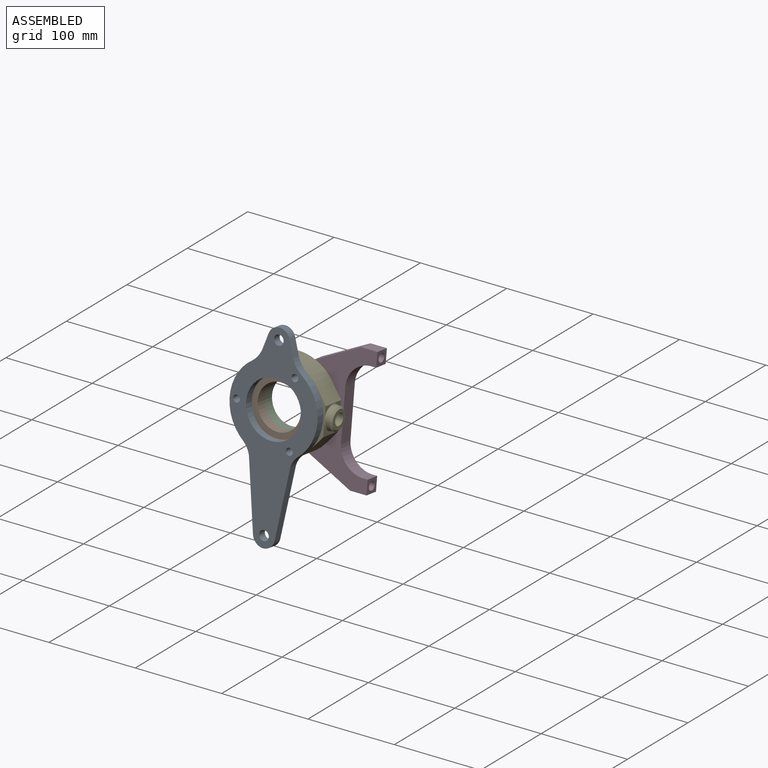
[diagram: assembled view]
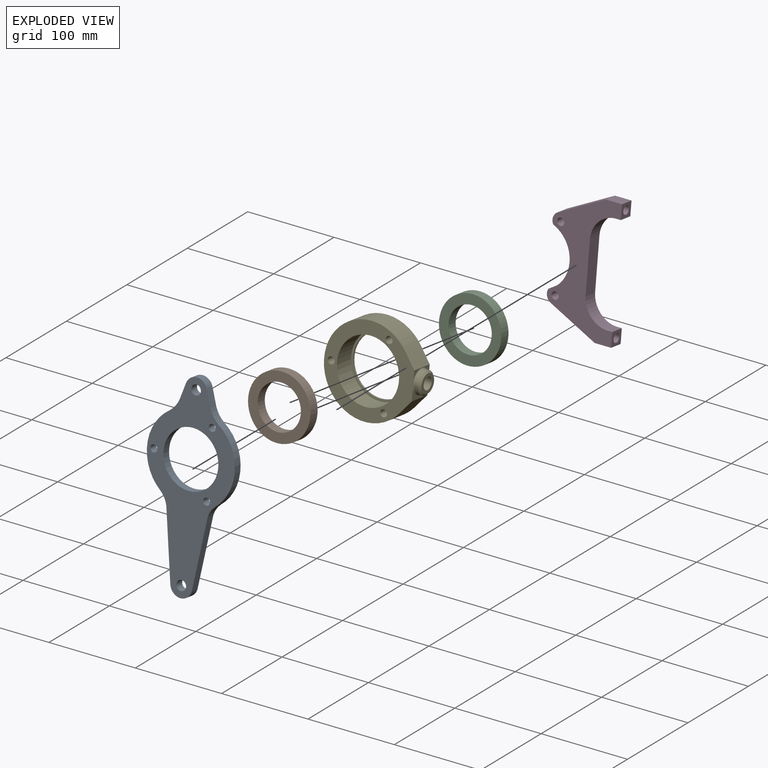
[diagram: exploded view]
GUIDED TOUR — MATED ASSEMBLY (Onshape document af3f4730a27134600b8b0b92, AutoMate assembly af3f4730a27134600b8b0b92_98c0748dc677245c911822a7_2b4eb2aca6c4c2a07d56eafd_default)

This assembly has 5 components, labeled P0..P4 below (a component is one placed occurrence of a part; the same part can appear more than once), held together by 4 mates. A mate is a constraint between two components; its type names the relative motion it leaves free:
  FASTENED — locks the two components together rigidly (no relative motion).
Axis/direction vectors are unit vectors and 'through' points are millimeter coordinates, both in the assembly's world frame.

MATES
  1. FASTENED "Fastened 1": P0 <-> P1, direction (0.000, 0.992, -0.125) through (-48.31, -92.90, -83.52) mm
  2. FASTENED "Fastened 4": P1 <-> P2, direction (0.000, 0.992, -0.125) through (-48.31, -80.99, -85.01) mm
  3. FASTENED "Fastened 3": P2 <-> P4, direction (0.000, 0.992, -0.125) through (-48.31, -69.08, -86.51) mm
  4. FASTENED "Fastened 2": P3 <-> P4, direction (0.000, -0.992, 0.125) through (-48.31, -67.19, -86.75) mm

ASSEMBLY ORDER
  1. P1 — the base component [order heuristic]
  2. P4 — core [order heuristic]
  3. P0 [order verified]
  4. P2 — core [order heuristic]
  5. P3 [order verified]
Order-tag legend:
  [order verified] — this step's position reverses a verified removal order: the component was checked to insert without passing through the ones already placed.
  [order heuristic] — the first 3 components form the assembly's core: parts whose collision-free extraction could not be verified, listed in mate-graph order.

Of the 5 components, 4 carry the full construction recipe — the FeatureScript program that regenerates the part's solid from scratch; the rest are supplied as boundary geometry only.
Each toured component is shown spotlighted twice — in the assembled view, then in the exploded view, where a leader line traces a displaced component back to its assembled socket (saturated green if recipe-attached, orange if geometry-only; every other component desaturated gray) — followed by its recipe or geometry summary and the mates that hold it.
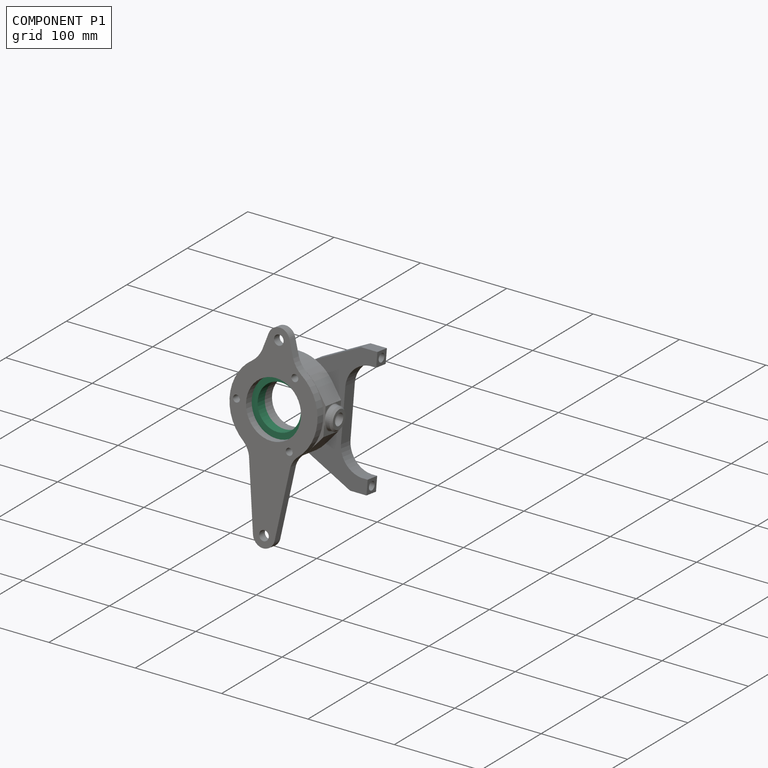
[diagram: component P1 — assembled]
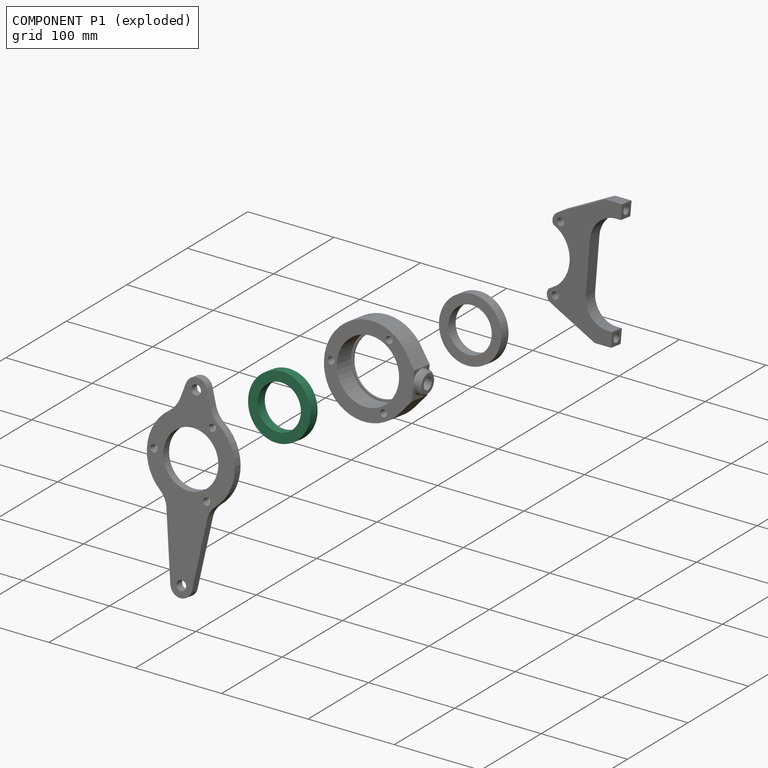
[diagram: component P1 — exploded]
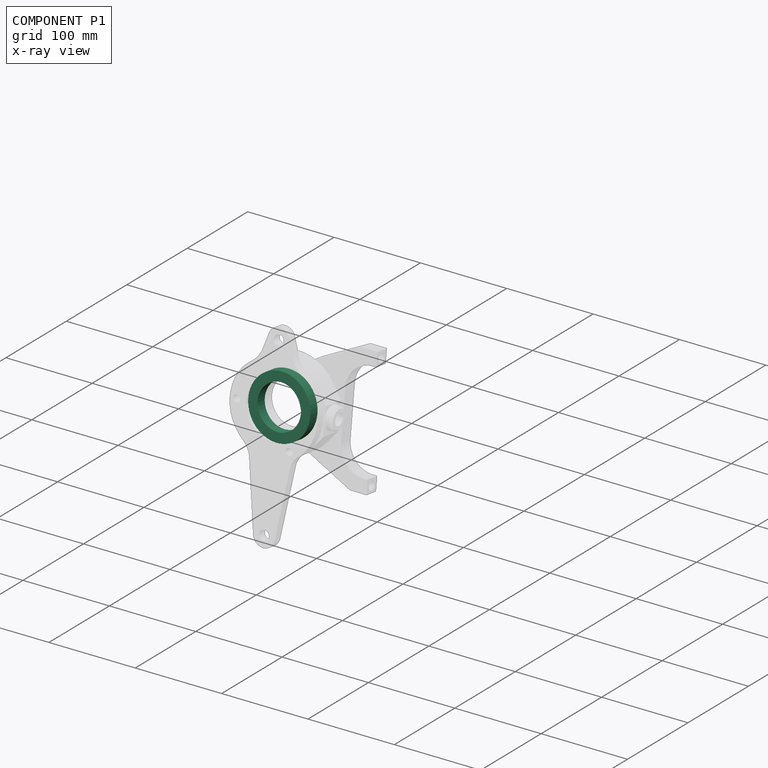
[diagram: component P1 — x-ray view]
COMPONENT P1 — recipe-attached (CADFS 00308085, mesh-verified: the recipe's output STEP matches this component's geometry to below the mesh-comparison resolution (tessellation chordal tolerance ~0.154 mm)).
Held by: FASTENED mate "Fastened 1" to P0; FASTENED mate "Fastened 4" to P2.
Construction recipe (FeatureScript — the CAD program that rebuilds this solid; sketch coordinates are in the units given by the * unit suffixes, e.g. mm):

FeatureScript 1511;
import(path : "onshape/std/geometry.fs", version : "1511.0");
import(path : "onshape/std/common.fs", version : "1511.0");
const mm = millimeter;
const VERTEX = EntityType.VERTEX;
const EDGE = EntityType.EDGE;
const FACE = EntityType.FACE;
const BODY = EntityType.BODY;
function v(x, y){return vector(x, y);}
function OD(order){return orderDisambiguation(order);}
function OSD(set){return originalSetDisambiguation(set);}
function TD(topology){return topologyDisambiguation(topology);}
function TDD(query){return trueDependencyDisambiguation(query);}
function sQuery(a, b, c) {return sketchEntityQuery(a, b, c);}

annotation { "Feature Type Name" : "Feature", "Feature Type Description" : "" }
export const myFeature = defineFeature(function(context is Context, id is Id, definition is map)
    precondition{}
    {
        {
            var Q0;
            Q0=qCreatedBy(makeId("Front.planeOp"),FACE);
            var sketch = newSketch(context, id + "F0", { "sketchPlane" : qUnion([Q0])});
            skCircle(sketch, "E0", {"center": v(0, 0) * mm, "radius": 36 * mm});
            skCircle(sketch, "E1", {"center": v(0, 0) * mm, "radius": 25 * mm});
            skSolve(sketch);
        }
        {
            var Q0;
            Q0 = qSketchRegion(id + "F0", true);
            extrude(context, id + "F1", {"entities" : qUnion([Q0]), "depth" : 12 * mm, "offsetDistance" : 25.4 * mm});
        }
    });
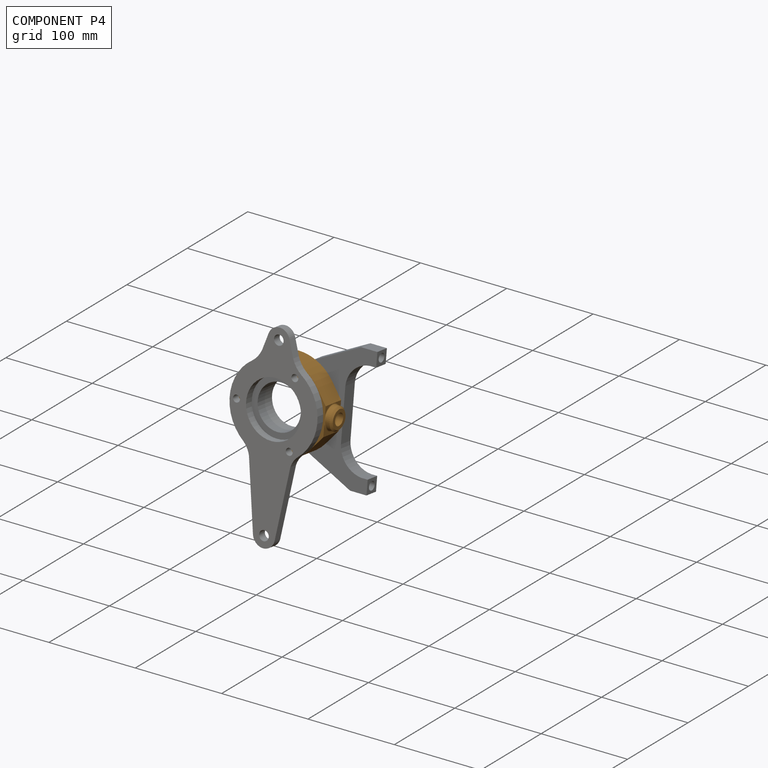
[diagram: component P4 — assembled]
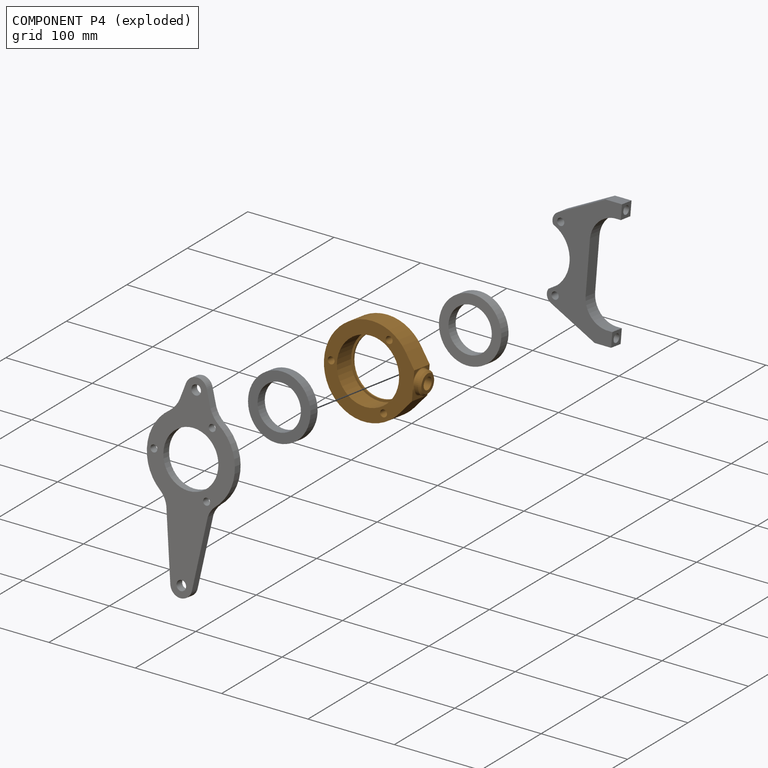
[diagram: component P4 — exploded]
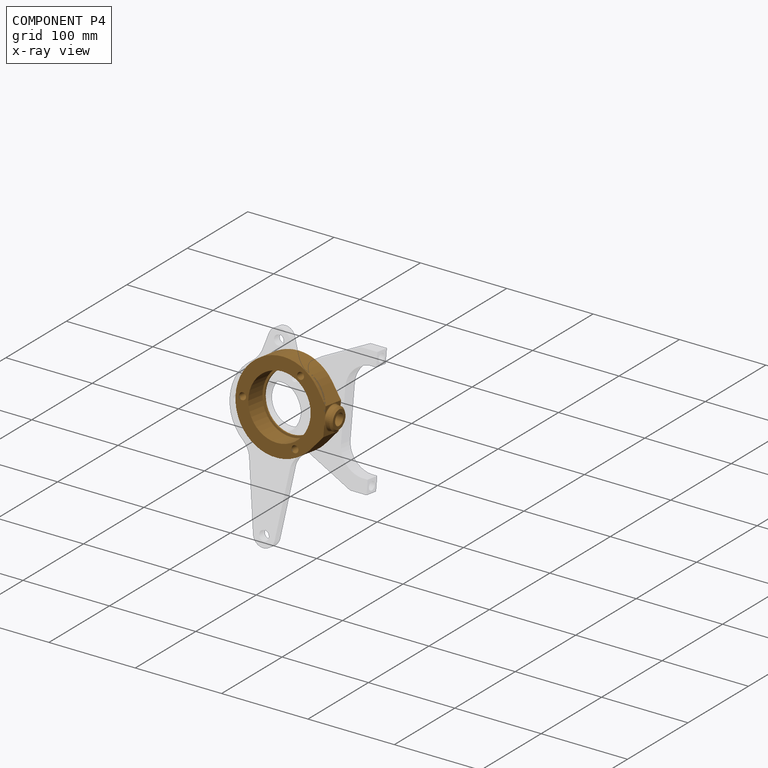
[diagram: component P4 — x-ray view]
COMPONENT P4 — geometry summary (no construction recipe available for this part):
  bounding box: 111.2 x 101.7 x 29.7 mm
  B-rep topology: 1 solid, 21 faces, 98 edges
  volume: 104532 mm^3 (31% of its bounding box)
Held by: FASTENED mate "Fastened 3" to P2; FASTENED mate "Fastened 2" to P3.
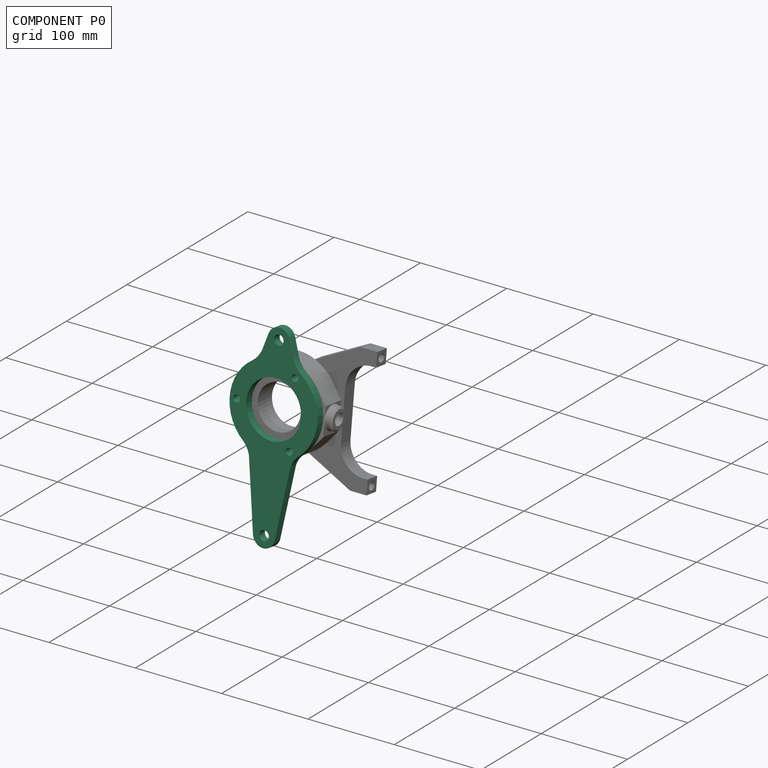
[diagram: component P0 — assembled]
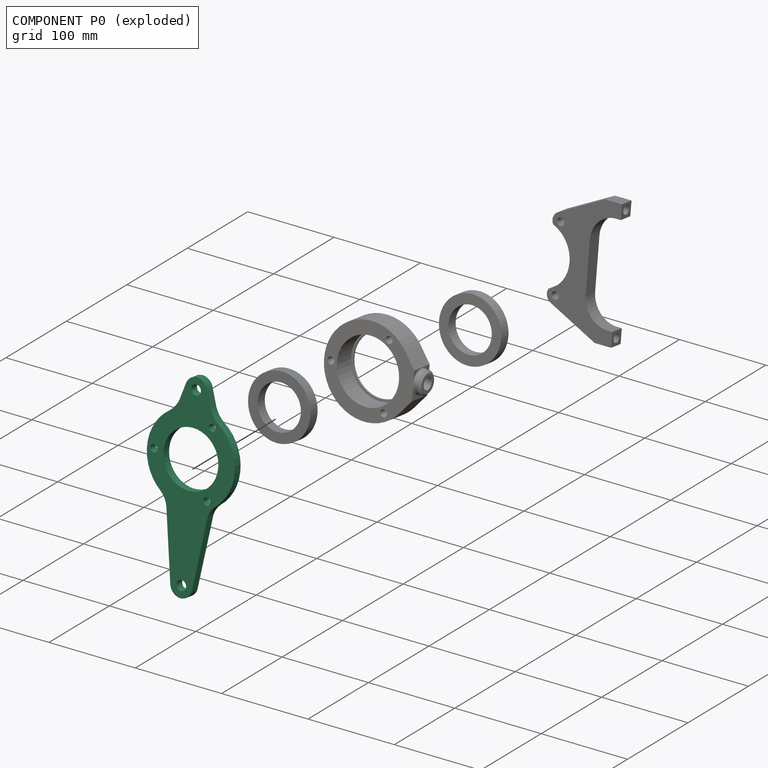
[diagram: component P0 — exploded]
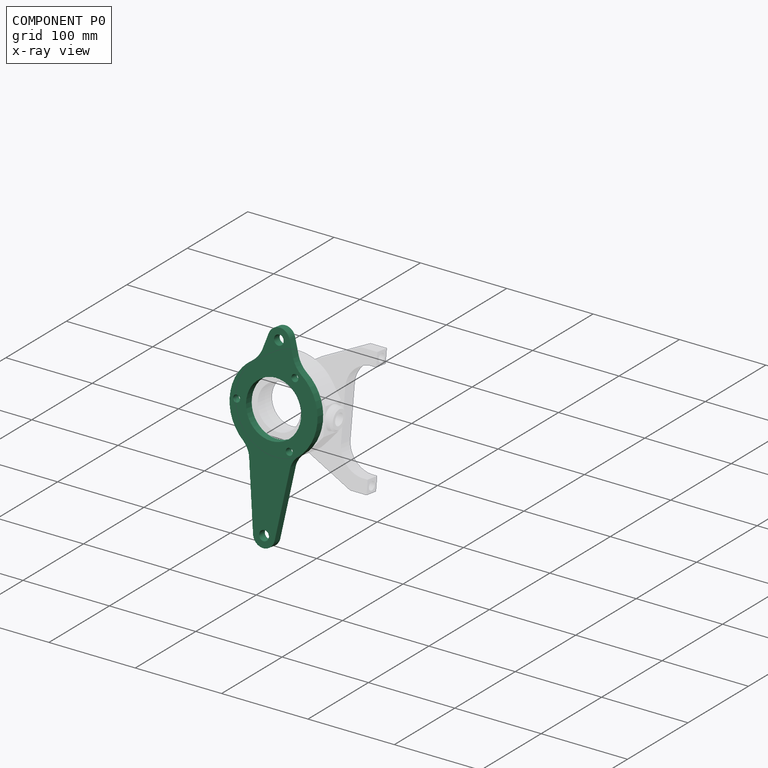
[diagram: component P0 — x-ray view]
COMPONENT P0 — recipe-attached (CADFS 00308081, mesh-verified: the recipe's output STEP matches this component's geometry to below the mesh-comparison resolution (tessellation chordal tolerance ~0.367 mm)).
Held by: FASTENED mate "Fastened 1" to P1.
Construction recipe (FeatureScript — the CAD program that rebuilds this solid; sketch coordinates are in the units given by the * unit suffixes, e.g. mm):

FeatureScript 1511;
import(path : "onshape/std/geometry.fs", version : "1511.0");
import(path : "onshape/std/common.fs", version : "1511.0");
const mm = millimeter;
const VERTEX = EntityType.VERTEX;
const EDGE = EntityType.EDGE;
const FACE = EntityType.FACE;
const BODY = EntityType.BODY;
function v(x, y){return vector(x, y);}
function OD(order){return orderDisambiguation(order);}
function OSD(set){return originalSetDisambiguation(set);}
function TD(topology){return topologyDisambiguation(topology);}
function TDD(query){return trueDependencyDisambiguation(query);}
function sQuery(a, b, c) {return sketchEntityQuery(a, b, c);}

annotation { "Feature Type Name" : "Feature", "Feature Type Description" : "" }
export const myFeature = defineFeature(function(context is Context, id is Id, definition is map)
    precondition{}
    {
        {
            var Q0;
            Q0=qCreatedBy(makeId("Front.planeOp"),FACE);
            var sketch = newSketch(context, id + "F0", { "sketchPlane" : qUnion([Q0])});
            skArc(sketch, "E0", {"start": v(31.44, -39.9) * mm, "mid": v(50.76, 2) * mm, "end": v(28.19, 42.26) * mm});
            skCircle(sketch, "E1", {"center": v(0, 0) * mm, "radius": 31.75 * mm});
            skLineSegment(sketch, "E2", {"start": v(0, 117.02) * mm, "end": v(0, -168.81) * mm, "construction": true});
            skLineSegment(sketch, "E3", {"start": v(-75.94, 0) * mm, "end": v(123.61, 0) * mm, "construction": true});
            skCircle(sketch, "E4", {"center": v(0, 69.85) * mm, "radius": 5.56 * mm});
            skCircle(sketch, "E5", {"center": v(0, -127) * mm, "radius": 5.56 * mm});
            skArc(sketch, "E6", {"start": v(12.08, 73.76) * mm, "mid": v(0, 82.55) * mm, "end": v(-12.08, 73.77) * mm});
            skArc(sketch, "E7", {"start": v(-12.56, -128.88) * mm, "mid": v(0, -139.7) * mm, "end": v(12.56, -128.86) * mm});
            skCircle(sketch, "E8", {"center": v(-21.42, 37.1) * mm, "radius": 3.97 * mm});
            skCircle(sketch, "E9", {"center": v(-21.42, -37.1) * mm, "radius": 3.97 * mm});
            skLineSegment(sketch, "E10", {"start": v(-24.08, -51.75) * mm, "end": v(-12.56, -128.88) * mm});
            skLineSegment(sketch, "E11", {"start": v(23.81, -52.8) * mm, "end": v(12.56, -128.86) * mm});
            skArc(sketch, "E12", {"start": v(33.1, -38.54) * mm, "mid": v(26.16, -46.6) * mm, "end": v(23.22, -56.83) * mm});
            skArc(sketch, "E13.MirrorCS", {"start": v(-33.1, -38.54) * mm, "mid": v(-26.16, -46.6) * mm, "end": v(-23.22, -56.83) * mm});
            skLineSegment(sketch, "E14", {"start": v(-17.88, 55.9) * mm, "end": v(-12.08, 73.77) * mm});
            skLineSegment(sketch, "E15", {"start": v(17.78, 56.17) * mm, "end": v(12.08, 73.76) * mm});
            skArc(sketch, "E16", {"start": v(16.98, 58.65) * mm, "mid": v(21.81, 48.7) * mm, "end": v(29.86, 41.1) * mm});
            skArc(sketch, "E17.MirrorCS", {"start": v(-16.98, 58.65) * mm, "mid": v(-21.81, 48.7) * mm, "end": v(-29.86, 41.1) * mm});
            skArc(sketch, "E18.trimOffspring", {"start": v(-28.19, 42.26) * mm, "mid": v(-50.76, 2) * mm, "end": v(-31.44, -39.9) * mm});
            skCircle(sketch, "E19", {"center": v(42.85, 0) * mm, "radius": 3.97 * mm});
            skSolve(sketch);
        }
        {
            var Q0;
            Q0 = qSketchRegion(id + "F0", true);
            extrude(context, id + "F1", {"entities" : qUnion([Q0]), "depth" : 9.52 * mm, "offsetDistance" : 25.4 * mm});
        }
    });
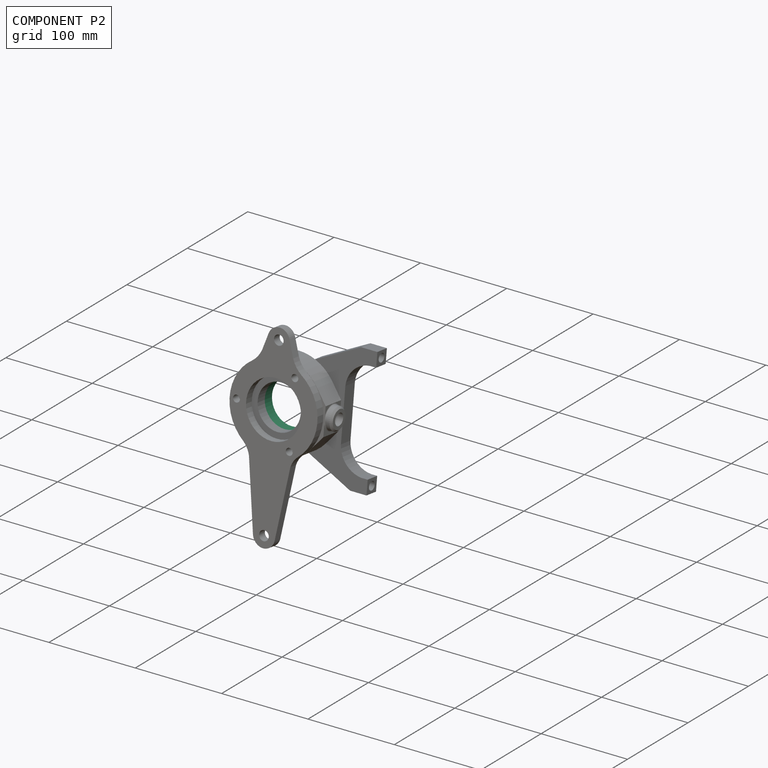
[diagram: component P2 — assembled]
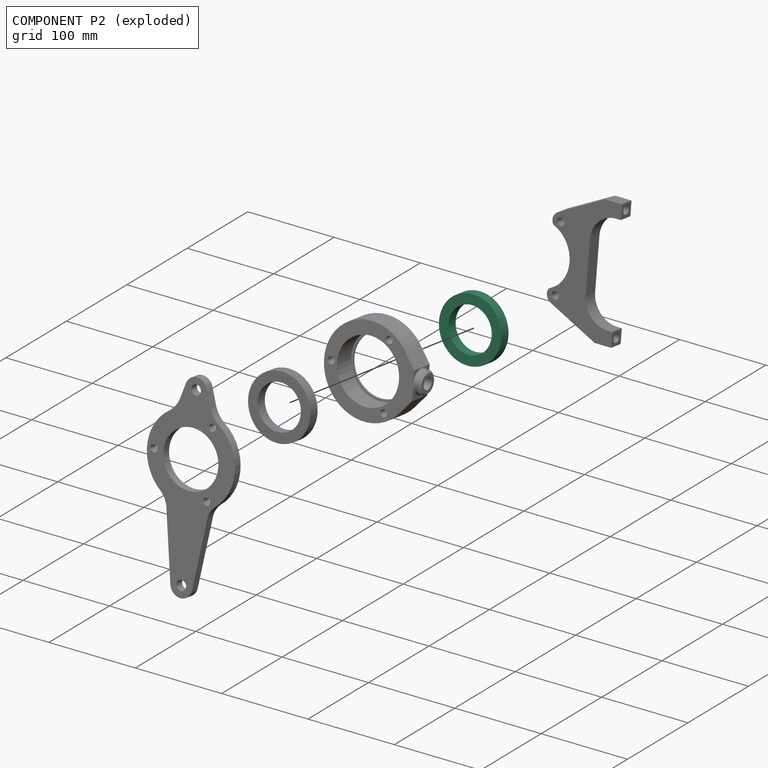
[diagram: component P2 — exploded]
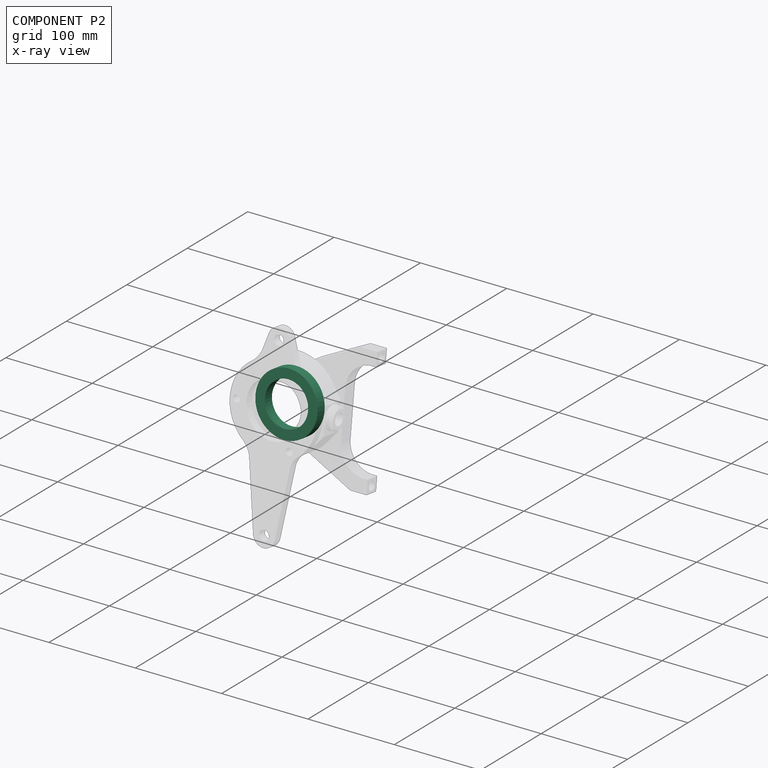
[diagram: component P2 — x-ray view]
COMPONENT P2 — same part as P1 (CADFS 00308085); its construction recipe is shown at P1.
Held by: FASTENED mate "Fastened 4" to P1; FASTENED mate "Fastened 3" to P4.
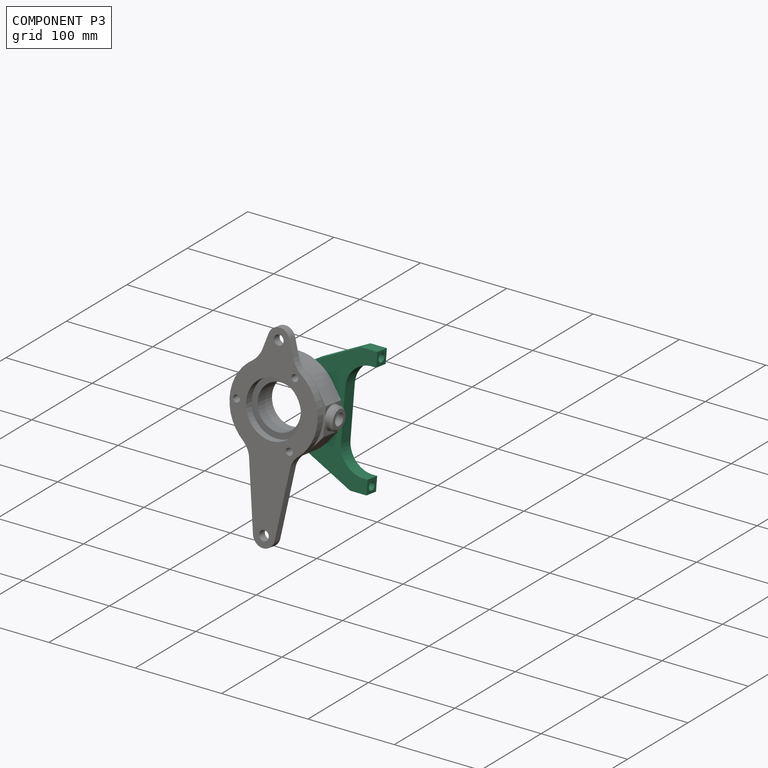
[diagram: component P3 — assembled]
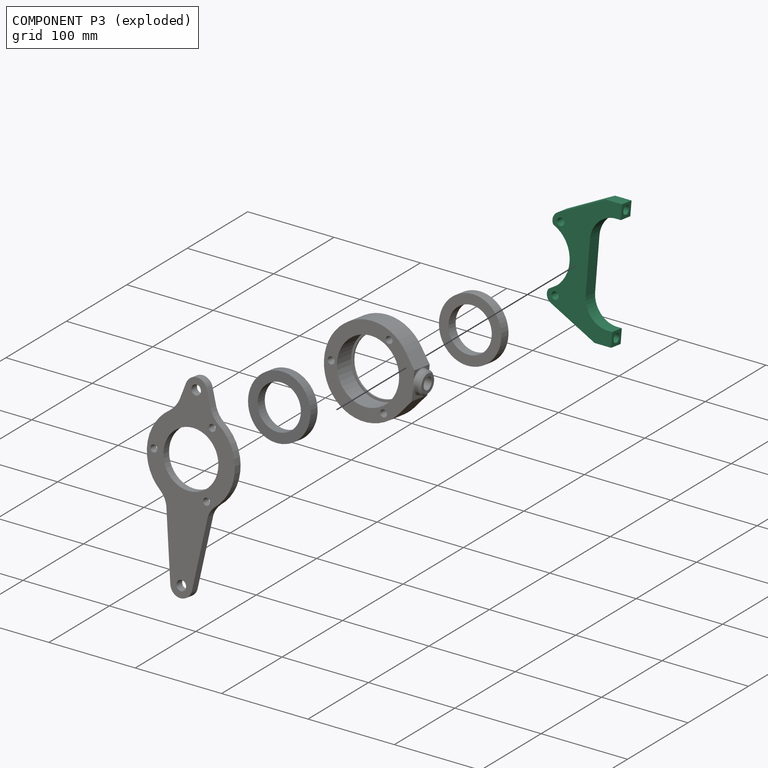
[diagram: component P3 — exploded]
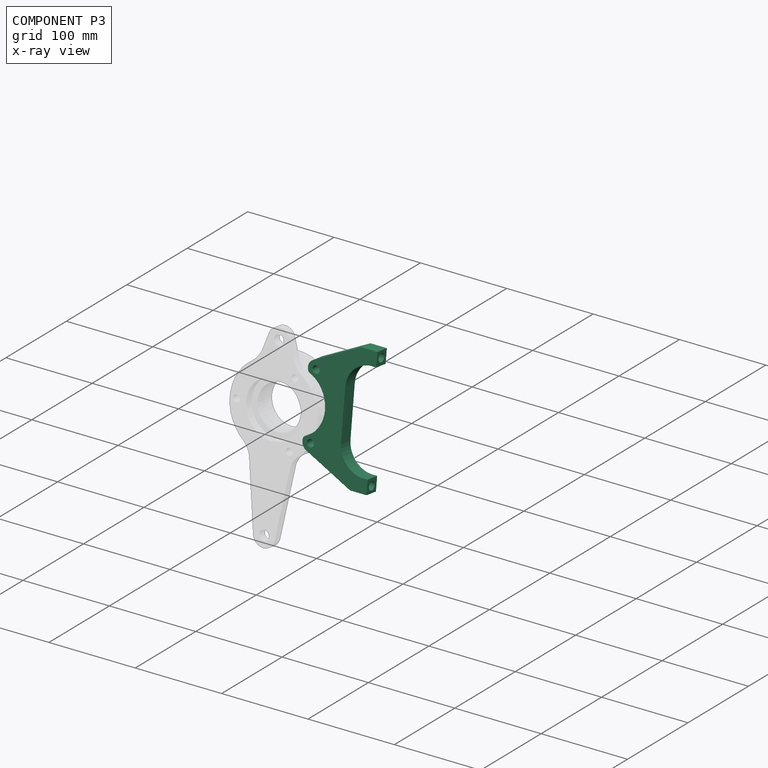
[diagram: component P3 — x-ray view]
COMPONENT P3 — recipe-attached (CADFS 00308079, mesh-verified: the recipe's output STEP matches this component's geometry to below the mesh-comparison resolution (tessellation chordal tolerance ~0.247 mm)).
Held by: FASTENED mate "Fastened 2" to P4.
Construction recipe (FeatureScript — the CAD program that rebuilds this solid; sketch coordinates are in the units given by the * unit suffixes, e.g. mm):

FeatureScript 1511;
import(path : "onshape/std/geometry.fs", version : "1511.0");
import(path : "onshape/std/common.fs", version : "1511.0");
const mm = millimeter;
const VERTEX = EntityType.VERTEX;
const EDGE = EntityType.EDGE;
const FACE = EntityType.FACE;
const BODY = EntityType.BODY;
function v(x, y){return vector(x, y);}
function OD(order){return orderDisambiguation(order);}
function OSD(set){return originalSetDisambiguation(set);}
function TD(topology){return topologyDisambiguation(topology);}
function TDD(query){return trueDependencyDisambiguation(query);}
function sQuery(a, b, c) {return sketchEntityQuery(a, b, c);}

annotation { "Feature Type Name" : "Feature", "Feature Type Description" : "" }
export const myFeature = defineFeature(function(context is Context, id is Id, definition is map)
    precondition{}
    {
        {
            var Q0;
            Q0=qCreatedBy(makeId("Front.planeOp"),FACE);
            var sketch = newSketch(context, id + "F0", { "sketchPlane" : qUnion([Q0])});
            skArc(sketch, "E0", {"start": v(-32.34, -13.18) * mm, "mid": v(0, -34.92) * mm, "end": v(32.34, -13.18) * mm});
            skCircle(sketch, "E1", {"center": v(-37.1, -21.42) * mm, "radius": 4.13 * mm});
            skArc(sketch, "E2", {"start": v(-32.34, -13.18) * mm, "mid": v(-39.84, -12.3) * mm, "end": v(-45.63, -17.16) * mm});
            skCircle(sketch, "E3.MirrorC", {"center": v(37.1, -21.42) * mm, "radius": 4.13 * mm});
            skArc(sketch, "E4.MirrorCS", {"start": v(32.34, -13.18) * mm, "mid": v(39.84, -12.3) * mm, "end": v(45.63, -17.16) * mm});
            skPoint(sketch, "E5.orphan", {"position": v(0, -34.93) * mm});
            skLineSegment(sketch, "E6.0", {"start": v(-29.37, -56) * mm, "end": v(29.37, -56) * mm});
            skLineSegment(sketch, "E7.0", {"start": v(-72.23, -89.34) * mm, "end": v(-56.36, -89.34) * mm});
            skLineSegment(sketch, "E8", {"start": v(0, -34.93) * mm, "end": v(0, -56) * mm});
            skLineSegment(sketch, "E9.0", {"start": v(72.23, -70.3) * mm, "end": v(72.23, -89.34) * mm});
            skLineSegment(sketch, "E10.0", {"start": v(-72.23, -70.3) * mm, "end": v(-72.23, -89.34) * mm});
            skLineSegment(sketch, "E11.0", {"start": v(56.36, -82.25) * mm, "end": v(56.36, -89.34) * mm});
            skLineSegment(sketch, "E12.0", {"start": v(-56.36, -82.25) * mm, "end": v(-56.36, -89.34) * mm});
            skArc(sketch, "E13", {"start": v(56.36, -86.17) * mm, "mid": v(48.44, -64.53) * mm, "end": v(27.03, -56) * mm});
            skPoint(sketch, "E13.first.point", {"position": v(56.36, -86.17) * mm});
            skPoint(sketch, "E13.second.point", {"position": v(27.03, -56) * mm});
            skLineSegment(sketch, "E14.trimOffspring", {"start": v(55.95, -89.34) * mm, "end": v(72.23, -89.34) * mm});
            skArc(sketch, "E15.MirrorCS", {"start": v(-56.36, -86.17) * mm, "mid": v(-48.44, -64.53) * mm, "end": v(-27.03, -56) * mm});
            skPoint(sketch, "E16.endSnap0", {"position": v(45.36, -26.19) * mm});
            skLineSegment(sketch, "E17", {"start": v(-72.23, -70.3) * mm, "end": v(-45.63, -17.16) * mm});
            skLineSegment(sketch, "E18", {"start": v(72.23, -70.3) * mm, "end": v(45.63, -17.16) * mm});
            skPoint(sketch, "E19.orphan", {"position": v(27.58, -21.42) * mm});
            skPoint(sketch, "E20.orphan", {"position": v(-27.58, -21.42) * mm});
            skSolve(sketch);
        }
        {
            var Q0;
            Q0 = qSketchRegion(id + "F0", true);
            extrude(context, id + "F1", {"entities" : qUnion([Q0]), "depth" : 15.88 * mm, "offsetDistance" : 25.4 * mm});
        }
        {
            var Q0;
            Q0=makeQuery(id+"F1.opExtrude","CAP_FACE",FACE,{"disambiguationData":[OSD([sQuery(id+"F0.wireOp",EDGE,"E0"),sQuery(id+"F0.wireOp",EDGE,"E1"),sQuery(id+"F0.wireOp",EDGE,"E2"),sQuery(id+"F0.wireOp",EDGE,"E3.MirrorC"),sQuery(id+"F0.wireOp",EDGE,"E4.MirrorCS"),sQuery(id+"F0.wireOp",EDGE,"E6.0"),sQuery(id+"F0.wireOp",EDGE,"E7.0"),sQuery(id+"F0.wireOp",EDGE,"E9.0"),sQuery(id+"F0.wireOp",EDGE,"E10.0"),sQuery(id+"F0.wireOp",EDGE,"E11.0"),sQuery(id+"F0.wireOp",EDGE,"E12.0"),sQuery(id+"F0.wireOp",EDGE,"E13"),sQuery(id+"F0.wireOp",EDGE,"E14.trimOffspring"),sQuery(id+"F0.wireOp",EDGE,"E15.MirrorCS"),sQuery(id+"F0.wireOp",EDGE,"E17"),sQuery(id+"F0.wireOp",EDGE,"E18")])],"isStart":false});
            var sketch = newSketch(context, id + "F2", { "sketchPlane" : qUnion([Q0])});
            skArc(sketch, "E21.0", {"start": v(-32.34, -13.18) * mm, "mid": v(0, -34.92) * mm, "end": v(32.34, -13.18) * mm});
            skCircle(sketch, "E21.1", {"center": v(-37.1, -21.42) * mm, "radius": 4.13 * mm});
            skArc(sketch, "E21.2", {"start": v(-32.34, -13.18) * mm, "mid": v(-39.84, -12.3) * mm, "end": v(-45.63, -17.16) * mm});
            skCircle(sketch, "E21.3", {"center": v(37.1, -21.42) * mm, "radius": 4.13 * mm});
            skArc(sketch, "E21.4", {"start": v(32.34, -13.18) * mm, "mid": v(39.84, -12.3) * mm, "end": v(45.63, -17.16) * mm});
            skPoint(sketch, "E21.5", {"position": v(0, -34.93) * mm});
            skLineSegment(sketch, "E21.6", {"start": v(-29.37, -56) * mm, "end": v(29.37, -56) * mm});
            skLineSegment(sketch, "E21.7", {"start": v(-72.23, -89.34) * mm, "end": v(-56.36, -89.34) * mm});
            skLineSegment(sketch, "E21.8", {"start": v(0, -34.93) * mm, "end": v(0, -56) * mm});
            skLineSegment(sketch, "E21.9", {"start": v(72.23, -70.3) * mm, "end": v(72.23, -89.34) * mm});
            skLineSegment(sketch, "E21.10", {"start": v(-72.23, -70.3) * mm, "end": v(-72.23, -89.34) * mm});
            skLineSegment(sketch, "E21.11", {"start": v(56.36, -82.25) * mm, "end": v(56.36, -89.34) * mm});
            skLineSegment(sketch, "E21.12", {"start": v(-56.36, -82.25) * mm, "end": v(-56.36, -89.34) * mm});
            skArc(sketch, "E21.13", {"start": v(56.36, -86.17) * mm, "mid": v(48.44, -64.53) * mm, "end": v(27.03, -56) * mm});
            skPoint(sketch, "E21.14", {"position": v(56.36, -86.17) * mm});
            skPoint(sketch, "E21.15", {"position": v(27.03, -56) * mm});
            skLineSegment(sketch, "E21.17", {"start": v(55.95, -89.34) * mm, "end": v(72.23, -89.34) * mm});
            skArc(sketch, "E21.18", {"start": v(-56.36, -86.17) * mm, "mid": v(-48.44, -64.53) * mm, "end": v(-27.03, -56) * mm});
            skPoint(sketch, "E21.22", {"position": v(45.36, -26.19) * mm});
            skLineSegment(sketch, "E21.23", {"start": v(-72.23, -70.3) * mm, "end": v(-45.63, -17.16) * mm});
            skLineSegment(sketch, "E21.24", {"start": v(72.23, -70.3) * mm, "end": v(45.63, -17.16) * mm});
            skPoint(sketch, "E21.25", {"position": v(27.58, -21.42) * mm});
            skPoint(sketch, "E21.26", {"position": v(-27.58, -21.42) * mm});
            skSolve(sketch);
        }
        {
            var Q0;
            Q0=sQuery(id+"F2.wireOp",VERTEX,"E21.1.center");
            var Q1;
            Q1=sQuery(id+"F2.wireOp",VERTEX,"E21.3.center");
            var Q2;
            Q2=makeQuery(id+"F1.opExtrude","SWEPT_BODY",BODY,{"disambiguationData":[OSD([sQuery(id+"F0.wireOp",EDGE,"E0"),sQuery(id+"F0.wireOp",EDGE,"E1"),sQuery(id+"F0.wireOp",EDGE,"E2"),sQuery(id+"F0.wireOp",EDGE,"E3.MirrorC"),sQuery(id+"F0.wireOp",EDGE,"E4.MirrorCS"),sQuery(id+"F0.wireOp",EDGE,"E6.0"),sQuery(id+"F0.wireOp",EDGE,"E7.0"),sQuery(id+"F0.wireOp",EDGE,"E9.0"),sQuery(id+"F0.wireOp",EDGE,"E10.0"),sQuery(id+"F0.wireOp",EDGE,"E11.0"),sQuery(id+"F0.wireOp",EDGE,"E12.0"),sQuery(id+"F0.wireOp",EDGE,"E13"),sQuery(id+"F0.wireOp",EDGE,"E14.trimOffspring"),sQuery(id+"F0.wireOp",EDGE,"E15.MirrorCS"),sQuery(id+"F0.wireOp",EDGE,"E17"),sQuery(id+"F0.wireOp",EDGE,"E18")])]});
            hole(context, id + "F3", {"style" : HoleStyle.C_SINK, "endStyle" : HoleEndStyle.BLIND, "holeDiameter" : 8.25 * mm, "cSinkDiameter" : 15.24 * mm, "cSinkAngle" : 90 * degree, "majorDiameter" : 6.35 * mm, "holeDepth" : 25.4 * mm, "isTappedThrough" : true, "tappedDepth" : 12.7 * mm, "tapClearance" : 3, "locations" : qUnion([Q0, Q1]), "scope" : qUnion([Q2])});
        }
        {
            var Q0;
            Q0=makeQuery(id+"F1.opExtrude","SWEPT_FACE",FACE,{"disambiguationData":[OSD([sQuery(id+"F0.wireOp",EDGE,"E7.0")])]});
            var sketch = newSketch(context, id + "F4", { "sketchPlane" : qUnion([Q0])});
            skLineSegment(sketch, "E22.0", {"start": v(-72.23, 15.88) * mm, "end": v(-56.36, 15.88) * mm});
            skLineSegment(sketch, "E22.1", {"start": v(-72.23, 15.88) * mm, "end": v(-72.23, 0) * mm});
            skLineSegment(sketch, "E22.2", {"start": v(-72.23, 0) * mm, "end": v(-56.36, 0) * mm});
            skLineSegment(sketch, "E22.3", {"start": v(56.36, 15.88) * mm, "end": v(72.23, 15.88) * mm});
            skLineSegment(sketch, "E22.4", {"start": v(72.23, 15.88) * mm, "end": v(72.23, 0) * mm});
            skLineSegment(sketch, "E22.5", {"start": v(56.36, 0) * mm, "end": v(72.23, 0) * mm});
            skPoint(sketch, "E22.6", {"position": v(-72.23, 7.94) * mm});
            skLineSegment(sketch, "E23", {"start": v(-72.23, 7.94) * mm, "end": v(72.23, 7.94) * mm, "construction": true});
            skLineSegment(sketch, "E24", {"start": v(0, 7.94) * mm, "end": v(0, 38.13) * mm, "construction": true});
            skLineSegment(sketch, "E25.0", {"start": v(-64.5, 7.94) * mm, "end": v(-64.5, 38.13) * mm, "construction": true});
            skLineSegment(sketch, "E26", {"start": v(64.5, 7.94) * mm, "end": v(64.5, 36.59) * mm, "construction": true});
            skCircle(sketch, "E27", {"center": v(-64.5, 7.94) * mm, "radius": 4.76 * mm});
            skCircle(sketch, "E28", {"center": v(64.5, 7.94) * mm, "radius": 4.76 * mm});
            skSolve(sketch);
        }
        {
            var Q0;
            Q0 = qSketchRegion(id + "F4", true);
            extrude(context, id + "F5", {"entities" : qUnion([Q0]), "operationType" : NewBodyOperationType.REMOVE, "oppositeDirection" : true, "depth" : 19.05 * mm, "offsetDistance" : 25.4 * mm});
        }
    });
PROVENANCE & LICENSES
Assembly (occurrences, transforms, mates, per-part STEP geometry): AutoMate dataset, Zenodo record 7776208, CC0.
Construction recipes: CADFS (HuggingFace VladPyatov/CADFS, CC-BY-4.0, layered over the ABC dataset), FeatureScript reconstruction programs keyed by ABC model id.
Join: ABC meta listings map ABC model id -> Onshape documentId; within a shared document, parts are matched by geometric signature (bounding-box dims + volume at 0.1% relative tolerance, exact B-rep face/solid counts).
Verification: 4 of this assembly's 5 components carry a recipe attachment, and every attachment is mesh-verified: the CADFS STEP and the AutoMate member STEP were compared as meshes in their shared local frame (symmetric sampled-point-to-mesh distance); worst across the 4 attachments: below the mesh-comparison resolution (tessellation chordal tolerance ~0.367 mm) on a 244 mm part.
Renders: orthographic iso camera (az 35 / el 25); the floor grid conveys scale (grid pitch printed in each image; no ruler). In the exploded view each component is displaced by its stored offset vector: the offsets alone carry the explosion direction (mate normal/axis signs are not orientation cues and do not encode it), and separation distances are assigned per mate-chain, not proportionally to assembly-order depth.
